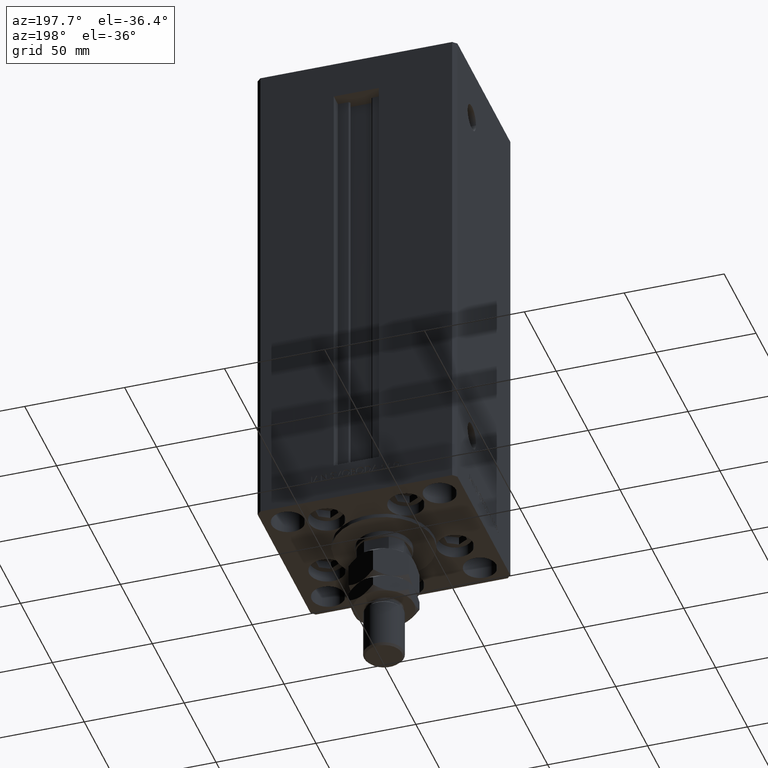
[diagram: clean part render]
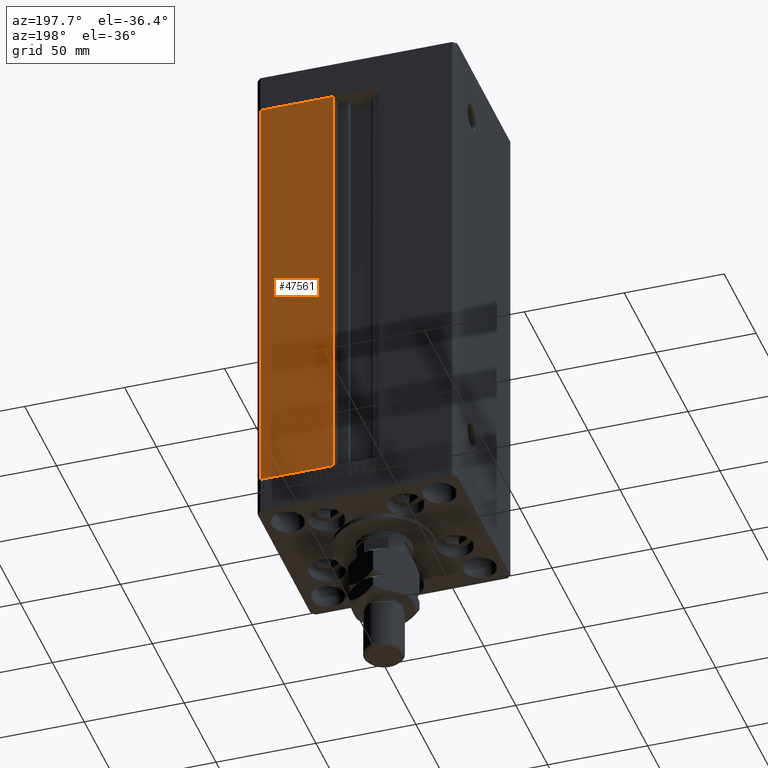
[diagram: same view with one face highlighted and labeled with its STEP entity id]
A machine part, auxiliary view. The second image highlights one B-rep face of the part: STEP entity #47561.
In plain terms, the highlighted planar face has unit normal (0, -1, 0).
Its self-contained STEP definition (entity closure, byte-faithful):
#492 = CARTESIAN_POINT ( 'NONE',  ( 11.24999999999999112, 43.50000000000000000, 218.5000000000000000 ) ) ;
#1643 = DIRECTION ( 'NONE',  ( 0.000000000000000000, -0.000000000000000000, -1.000000000000000000 ) ) ;
#2048 = EDGE_LOOP ( 'NONE', ( #3396, #23416, #8328, #22172 ) ) ;
#3396 = ORIENTED_EDGE ( 'NONE', *, *, #29387, .T. ) ;
#4576 = DIRECTION ( 'NONE',  ( -1.000000000000000000, 0.000000000000000000, 0.000000000000000000 ) ) ;
#5430 = CARTESIAN_POINT ( 'NONE',  ( 48.00000000000000711, 43.50000000000000000, 0.000000000000000000 ) ) ;
#8136 = VERTEX_POINT ( 'NONE', #15014 ) ;
#8328 = ORIENTED_EDGE ( 'NONE', *, *, #17734, .T. ) ;
#8474 = VECTOR ( 'NONE', #4576, 1000.000000000000000 ) ;
#8711 = DIRECTION ( 'NONE',  ( 0.000000000000000000, -1.000000000000000000, 0.000000000000000000 ) ) ;
#9555 = DIRECTION ( 'NONE',  ( -0.000000000000000000, -0.000000000000000000, -1.000000000000000000 ) ) ;
#10707 = VECTOR ( 'NONE', #20107, 1000.000000000000000 ) ;
#14384 = VERTEX_POINT ( 'NONE', #39260 ) ;
#15014 = CARTESIAN_POINT ( 'NONE',  ( 48.00000000000000711, 43.50000000000000000, 218.5000000000000000 ) ) ;
#15936 = LINE ( 'NONE', #44419, #10707 ) ;
#17115 = VECTOR ( 'NONE', #9555, 1000.000000000000000 ) ;
#17734 = EDGE_CURVE ( 'NONE', #47272, #8136, #15936, .T. ) ;
#20107 = DIRECTION ( 'NONE',  ( 1.000000000000000000, 0.000000000000000000, 0.000000000000000000 ) ) ;
#22172 = ORIENTED_EDGE ( 'NONE', *, *, #42292, .T. ) ;
#23142 = LINE ( 'NONE', #39113, #8474 ) ;
#23416 = ORIENTED_EDGE ( 'NONE', *, *, #37553, .T. ) ;
#29332 = FACE_OUTER_BOUND ( 'NONE', #2048, .T. ) ;
#29387 = EDGE_CURVE ( 'NONE', #48214, #14384, #23142, .T. ) ;
#31951 = DIRECTION ( 'NONE',  ( -0.000000000000000000, -0.000000000000000000, 1.000000000000000000 ) ) ;
#33615 = LINE ( 'NONE', #41724, #17115 ) ;
#36129 = LINE ( 'NONE', #51296, #43734 ) ;
#37446 = PLANE ( 'NONE',  #44756 ) ;
#37553 = EDGE_CURVE ( 'NONE', #14384, #47272, #36129, .T. ) ;
#39113 = CARTESIAN_POINT ( 'NONE',  ( -11.24999999999999822, 43.50000000000000000, 0.000000000000000000 ) ) ;
#39260 = CARTESIAN_POINT ( 'NONE',  ( 11.24999999999999822, 43.50000000000000000, 0.000000000000000000 ) ) ;
#41724 = CARTESIAN_POINT ( 'NONE',  ( 48.00000000000000711, 43.50000000000000000, 218.5000000000000000 ) ) ;
#42292 = EDGE_CURVE ( 'NONE', #8136, #48214, #33615, .T. ) ;
#43734 = VECTOR ( 'NONE', #31951, 1000.000000000000000 ) ;
#44419 = CARTESIAN_POINT ( 'NONE',  ( -11.24999999999999822, 43.50000000000000000, 218.5000000000000000 ) ) ;
#44756 = AXIS2_PLACEMENT_3D ( 'NONE', #44792, #8711, #1643 ) ;
#44792 = CARTESIAN_POINT ( 'NONE',  ( -11.24999999999999822, 43.50000000000000000, 218.5000000000000000 ) ) ;
#47272 = VERTEX_POINT ( 'NONE', #492 ) ;
#47561 = ADVANCED_FACE ( 'NONE', ( #29332 ), #37446, .F. ) ;
#48214 = VERTEX_POINT ( 'NONE', #5430 ) ;
#51296 = CARTESIAN_POINT ( 'NONE',  ( 11.24999999999999822, 43.50000000000000000, 0.000000000000000000 ) ) ;